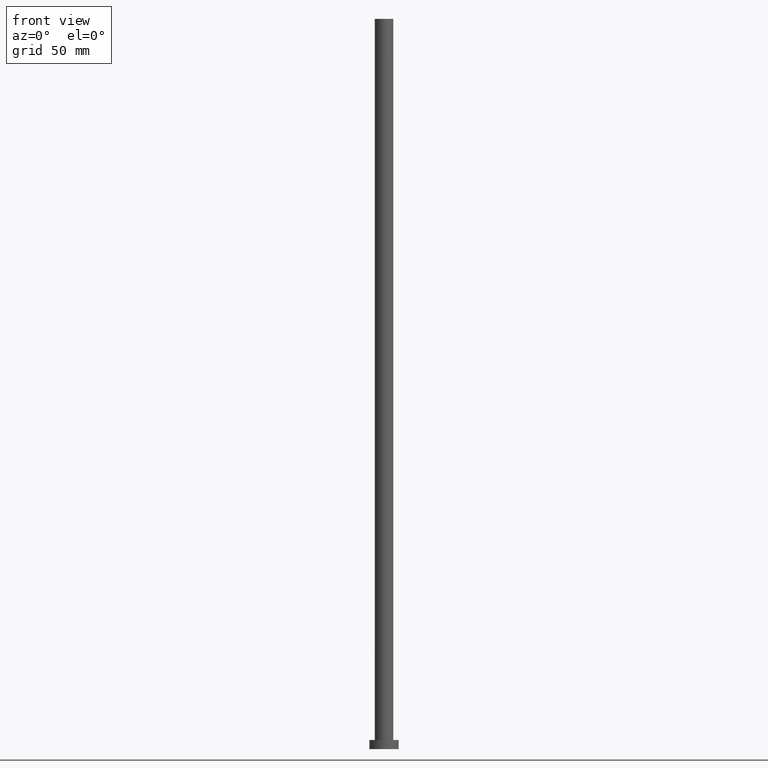
[diagram: clean part render]
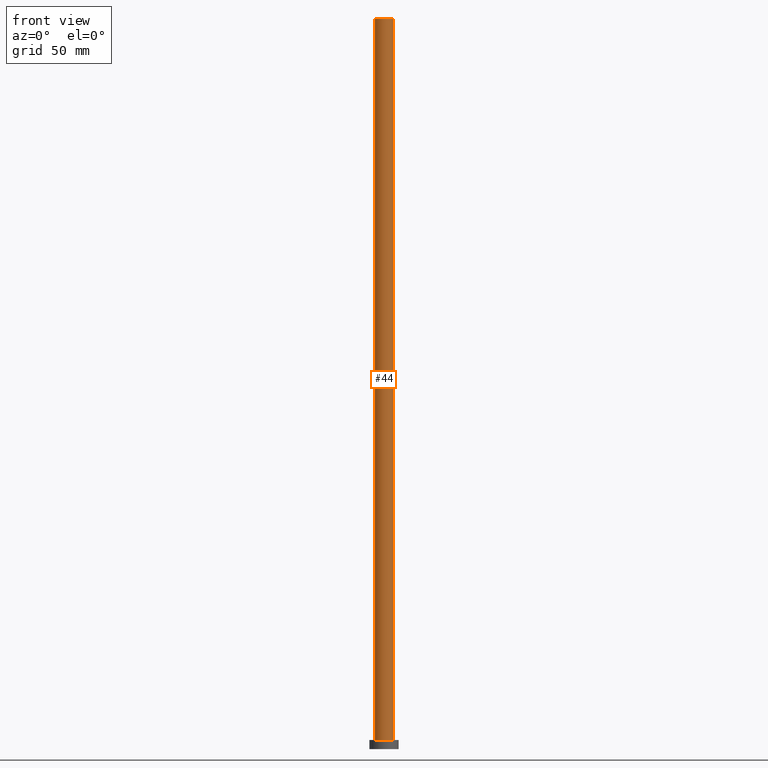
[diagram: same view with one face highlighted and labeled with its STEP entity id]
A machine part, front view. The second image highlights one B-rep face of the part: STEP entity #44.
In plain terms, the highlighted cylindrical surface (edge-blend (fillet) strip) has radius 5.1 mm, axis along (-0, -0, -1).
Its self-contained STEP definition (entity closure, byte-faithful):
#2 = VERTEX_POINT ( 'NONE', #73 ) ;
#11 = VECTOR ( 'NONE', #51, 1000.000000000000000 ) ;
#14 = CIRCLE ( 'NONE', #179, 5.100000000000001421 ) ;
#19 = DIRECTION ( 'NONE',  ( -1.000000000000000000, 0.000000000000000000, 0.000000000000000000 ) ) ;
#35 = DIRECTION ( 'NONE',  ( 1.000000000000000000, 0.000000000000000000, 0.000000000000000000 ) ) ;
#44 = ADVANCED_FACE ( 'NONE', ( #216 ), #115, .T. ) ;
#45 = ORIENTED_EDGE ( 'NONE', *, *, #53, .F. ) ;
#50 = CIRCLE ( 'NONE', #123, 5.100000000000001421 ) ;
#51 = DIRECTION ( 'NONE',  ( -0.000000000000000000, -0.000000000000000000, -1.000000000000000000 ) ) ;
#53 = EDGE_CURVE ( 'NONE', #81, #110, #50, .T. ) ;
#73 = CARTESIAN_POINT ( 'NONE',  ( 5.100000000000001421, 6.245698675651501825E-16, 5.000000000000000000 ) ) ;
#81 = VERTEX_POINT ( 'NONE', #83 ) ;
#83 = CARTESIAN_POINT ( 'NONE',  ( -5.100000000000001421, 0.000000000000000000, 400.0000000000000000 ) ) ;
#88 = CARTESIAN_POINT ( 'NONE',  ( -5.100000000000001421, 0.000000000000000000, 5.000000000000000000 ) ) ;
#97 = CARTESIAN_POINT ( 'NONE',  ( 0.000000000000000000, 0.000000000000000000, 400.0000000000000000 ) ) ;
#100 = EDGE_CURVE ( 'NONE', #127, #2, #14, .T. ) ;
#110 = VERTEX_POINT ( 'NONE', #208 ) ;
#115 = CYLINDRICAL_SURFACE ( 'NONE', #184, 5.100000000000001421 ) ;
#119 = ORIENTED_EDGE ( 'NONE', *, *, #100, .T. ) ;
#123 = AXIS2_PLACEMENT_3D ( 'NONE', #97, #236, #135 ) ;
#124 = VECTOR ( 'NONE', #188, 1000.000000000000000 ) ;
#127 = VERTEX_POINT ( 'NONE', #88 ) ;
#135 = DIRECTION ( 'NONE',  ( 1.000000000000000000, 0.000000000000000000, 0.000000000000000000 ) ) ;
#136 = LINE ( 'NONE', #199, #124 ) ;
#148 = DIRECTION ( 'NONE',  ( 0.000000000000000000, 0.000000000000000000, 1.000000000000000000 ) ) ;
#156 = DIRECTION ( 'NONE',  ( -0.000000000000000000, -0.000000000000000000, -1.000000000000000000 ) ) ;
#164 = EDGE_CURVE ( 'NONE', #81, #127, #251, .T. ) ;
#167 = ORIENTED_EDGE ( 'NONE', *, *, #164, .T. ) ;
#179 = AXIS2_PLACEMENT_3D ( 'NONE', #227, #148, #35 ) ;
#183 = EDGE_CURVE ( 'NONE', #110, #2, #136, .T. ) ;
#184 = AXIS2_PLACEMENT_3D ( 'NONE', #195, #156, #19 ) ;
#188 = DIRECTION ( 'NONE',  ( -0.000000000000000000, -0.000000000000000000, -1.000000000000000000 ) ) ;
#194 = CARTESIAN_POINT ( 'NONE',  ( -5.100000000000001421, 0.000000000000000000, 400.0000000000000000 ) ) ;
#195 = CARTESIAN_POINT ( 'NONE',  ( 0.000000000000000000, 0.000000000000000000, 400.0000000000000000 ) ) ;
#199 = CARTESIAN_POINT ( 'NONE',  ( 5.100000000000001421, 6.245698675651501825E-16, 400.0000000000000000 ) ) ;
#208 = CARTESIAN_POINT ( 'NONE',  ( 5.100000000000001421, 6.245698675651501825E-16, 400.0000000000000000 ) ) ;
#216 = FACE_OUTER_BOUND ( 'NONE', #223, .T. ) ;
#219 = ORIENTED_EDGE ( 'NONE', *, *, #183, .F. ) ;
#223 = EDGE_LOOP ( 'NONE', ( #219, #45, #167, #119 ) ) ;
#227 = CARTESIAN_POINT ( 'NONE',  ( 0.000000000000000000, 0.000000000000000000, 5.000000000000000000 ) ) ;
#236 = DIRECTION ( 'NONE',  ( 0.000000000000000000, 0.000000000000000000, 1.000000000000000000 ) ) ;
#251 = LINE ( 'NONE', #194, #11 ) ;